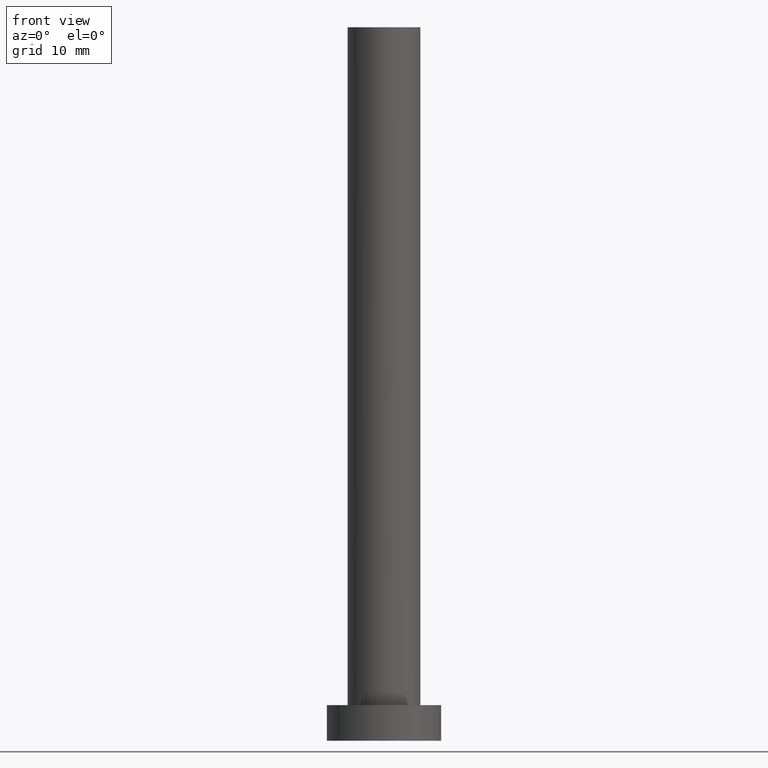
[diagram: clean part render]
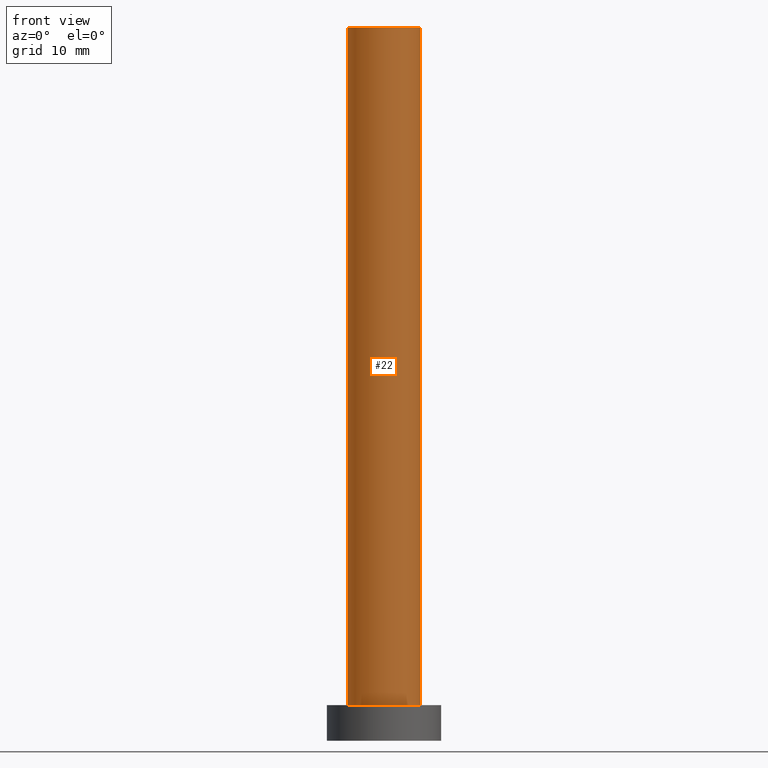
[diagram: same view with one face highlighted and labeled with its STEP entity id]
A machine part, front view. The second image highlights one B-rep face of the part: STEP entity #22.
In plain terms, the highlighted cylindrical surface (edge-blend (fillet) strip) has radius 5.1 mm, axis along (-0, -0, -1).
Its self-contained STEP definition (entity closure, byte-faithful):
#9 = DIRECTION ( 'NONE',  ( 0.000000000000000000, 0.000000000000000000, 1.000000000000000000 ) ) ;
#13 = LINE ( 'NONE', #14, #27 ) ;
#14 = CARTESIAN_POINT ( 'NONE',  ( -5.100000000000001421, 0.000000000000000000, 100.0000000000000000 ) ) ;
#22 = ADVANCED_FACE ( 'NONE', ( #252 ), #132, .T. ) ;
#27 = VECTOR ( 'NONE', #160, 1000.000000000000000 ) ;
#30 = CARTESIAN_POINT ( 'NONE',  ( 0.000000000000000000, 0.000000000000000000, 5.000000000000000000 ) ) ;
#36 = EDGE_CURVE ( 'NONE', #140, #62, #120, .T. ) ;
#43 = AXIS2_PLACEMENT_3D ( 'NONE', #206, #176, #71 ) ;
#44 = EDGE_CURVE ( 'NONE', #232, #46, #84, .T. ) ;
#46 = VERTEX_POINT ( 'NONE', #180 ) ;
#62 = VERTEX_POINT ( 'NONE', #228 ) ;
#64 = EDGE_CURVE ( 'NONE', #232, #140, #13, .T. ) ;
#70 = LINE ( 'NONE', #128, #126 ) ;
#71 = DIRECTION ( 'NONE',  ( -1.000000000000000000, 0.000000000000000000, 0.000000000000000000 ) ) ;
#84 = CIRCLE ( 'NONE', #222, 5.100000000000001421 ) ;
#86 = ORIENTED_EDGE ( 'NONE', *, *, #36, .T. ) ;
#99 = EDGE_LOOP ( 'NONE', ( #195, #124, #166, #86 ) ) ;
#116 = DIRECTION ( 'NONE',  ( 0.000000000000000000, 0.000000000000000000, 1.000000000000000000 ) ) ;
#120 = CIRCLE ( 'NONE', #188, 5.100000000000001421 ) ;
#124 = ORIENTED_EDGE ( 'NONE', *, *, #44, .F. ) ;
#126 = VECTOR ( 'NONE', #149, 1000.000000000000000 ) ;
#128 = CARTESIAN_POINT ( 'NONE',  ( 5.100000000000001421, 6.245698675651502811E-16, 100.0000000000000000 ) ) ;
#131 = CARTESIAN_POINT ( 'NONE',  ( -5.100000000000001421, 0.000000000000000000, 100.0000000000000000 ) ) ;
#132 = CYLINDRICAL_SURFACE ( 'NONE', #43, 5.100000000000001421 ) ;
#140 = VERTEX_POINT ( 'NONE', #237 ) ;
#149 = DIRECTION ( 'NONE',  ( -0.000000000000000000, -0.000000000000000000, -1.000000000000000000 ) ) ;
#160 = DIRECTION ( 'NONE',  ( -0.000000000000000000, -0.000000000000000000, -1.000000000000000000 ) ) ;
#163 = DIRECTION ( 'NONE',  ( 1.000000000000000000, 0.000000000000000000, 0.000000000000000000 ) ) ;
#166 = ORIENTED_EDGE ( 'NONE', *, *, #64, .T. ) ;
#176 = DIRECTION ( 'NONE',  ( -0.000000000000000000, -0.000000000000000000, -1.000000000000000000 ) ) ;
#179 = CARTESIAN_POINT ( 'NONE',  ( 0.000000000000000000, 0.000000000000000000, 100.0000000000000000 ) ) ;
#180 = CARTESIAN_POINT ( 'NONE',  ( 5.100000000000001421, 6.245698675651502811E-16, 100.0000000000000000 ) ) ;
#188 = AXIS2_PLACEMENT_3D ( 'NONE', #30, #9, #246 ) ;
#190 = EDGE_CURVE ( 'NONE', #46, #62, #70, .T. ) ;
#195 = ORIENTED_EDGE ( 'NONE', *, *, #190, .F. ) ;
#206 = CARTESIAN_POINT ( 'NONE',  ( 0.000000000000000000, 0.000000000000000000, 100.0000000000000000 ) ) ;
#222 = AXIS2_PLACEMENT_3D ( 'NONE', #179, #116, #163 ) ;
#228 = CARTESIAN_POINT ( 'NONE',  ( 5.100000000000001421, 6.245698675651502811E-16, 5.000000000000000000 ) ) ;
#232 = VERTEX_POINT ( 'NONE', #131 ) ;
#237 = CARTESIAN_POINT ( 'NONE',  ( -5.100000000000001421, 0.000000000000000000, 5.000000000000000000 ) ) ;
#246 = DIRECTION ( 'NONE',  ( 1.000000000000000000, 0.000000000000000000, 0.000000000000000000 ) ) ;
#252 = FACE_OUTER_BOUND ( 'NONE', #99, .T. ) ;